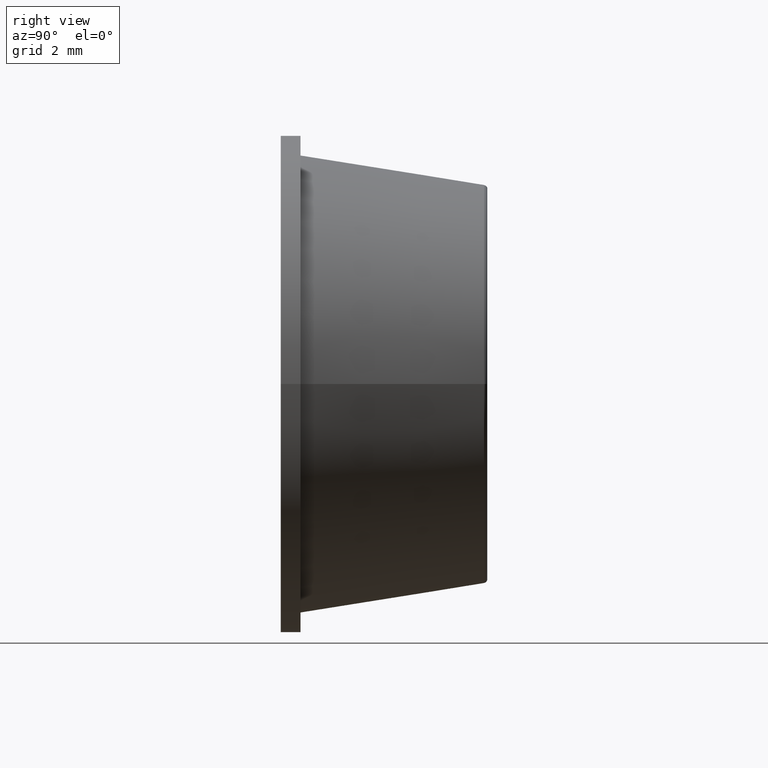
[diagram: clean part render]
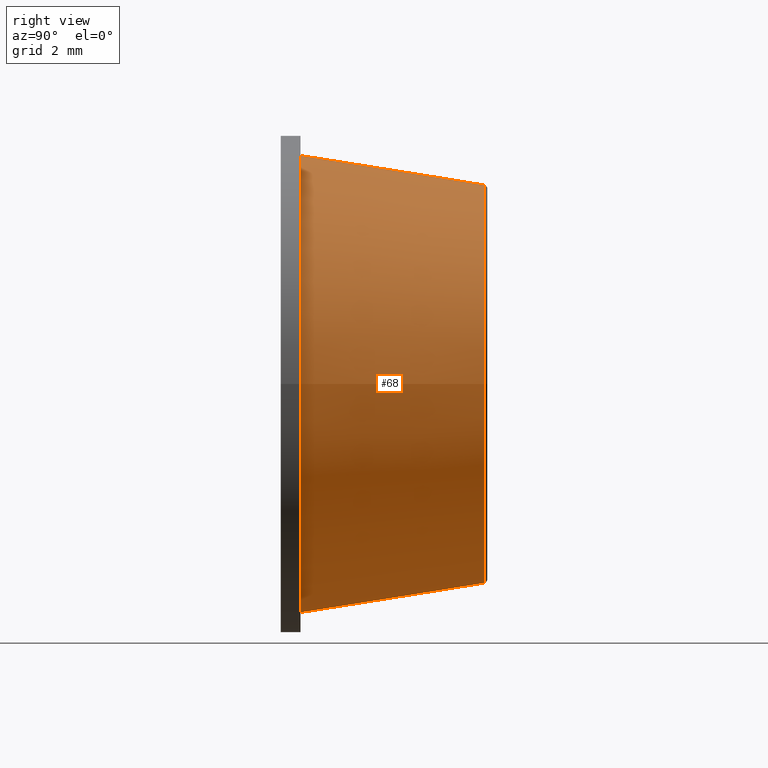
[diagram: same view with one face highlighted and labeled with its STEP entity id]
A machine part, right view. The second image highlights one B-rep face of the part: STEP entity #68.
In plain terms, the highlighted conical surface has half-angle 9.067 deg.
Its self-contained STEP definition (entity closure, byte-faithful):
#16=CONICAL_SURFACE('',#78,5.375,9.06650273981617);
#21=FACE_BOUND('',#34,.T.);
#26=FACE_OUTER_BOUND('',#33,.T.);
#33=EDGE_LOOP('',(#58));
#34=EDGE_LOOP('',(#59));
#41=CIRCLE('',#76,5.01344286019461);
#42=CIRCLE('',#79,5.75);
#46=VERTEX_POINT('',#113);
#47=VERTEX_POINT('',#117);
#51=EDGE_CURVE('',#46,#46,#41,.T.);
#52=EDGE_CURVE('',#47,#47,#42,.T.);
#58=ORIENTED_EDGE('',*,*,#52,.F.);
#59=ORIENTED_EDGE('',*,*,#51,.F.);
#68=ADVANCED_FACE('',(#26,#21),#16,.T.);
#76=AXIS2_PLACEMENT_3D('',#114,#91,#92);
#78=AXIS2_PLACEMENT_3D('',#116,#95,#96);
#79=AXIS2_PLACEMENT_3D('',#118,#97,#98);
#91=DIRECTION('center_axis',(0.,1.,0.));
#92=DIRECTION('ref_axis',(-1.,0.,2.45858025867674E-32));
#95=DIRECTION('center_axis',(6.12323399573676E-17,-1.,0.));
#96=DIRECTION('ref_axis',(1.,0.,0.));
#97=DIRECTION('center_axis',(6.12323399573676E-17,-1.,0.));
#98=DIRECTION('ref_axis',(1.,6.12323399573676E-17,0.));
#113=CARTESIAN_POINT('',(5.01344286019461,5.11575807611378,-1.2279393502891E-15));
#114=CARTESIAN_POINT('Origin',(0.,5.11575807611378,-6.13969675144548E-16));
#116=CARTESIAN_POINT('Origin',(-1.74512168878498E-16,2.85,0.));
#117=CARTESIAN_POINT('',(5.75,0.5,0.));
#118=CARTESIAN_POINT('Origin',(-3.06161699786838E-17,0.499999999999999,
0.));